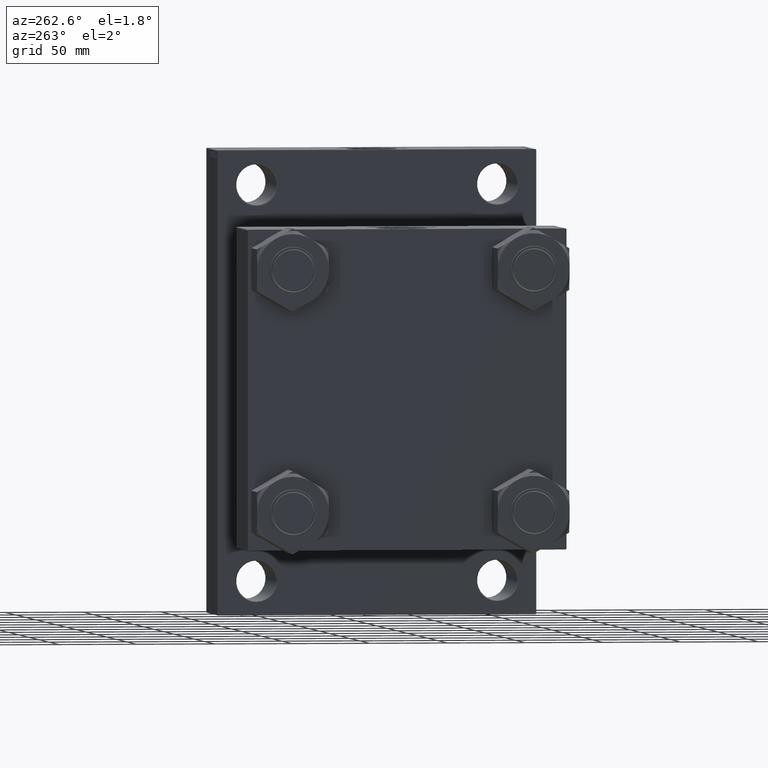
[diagram: clean part render]
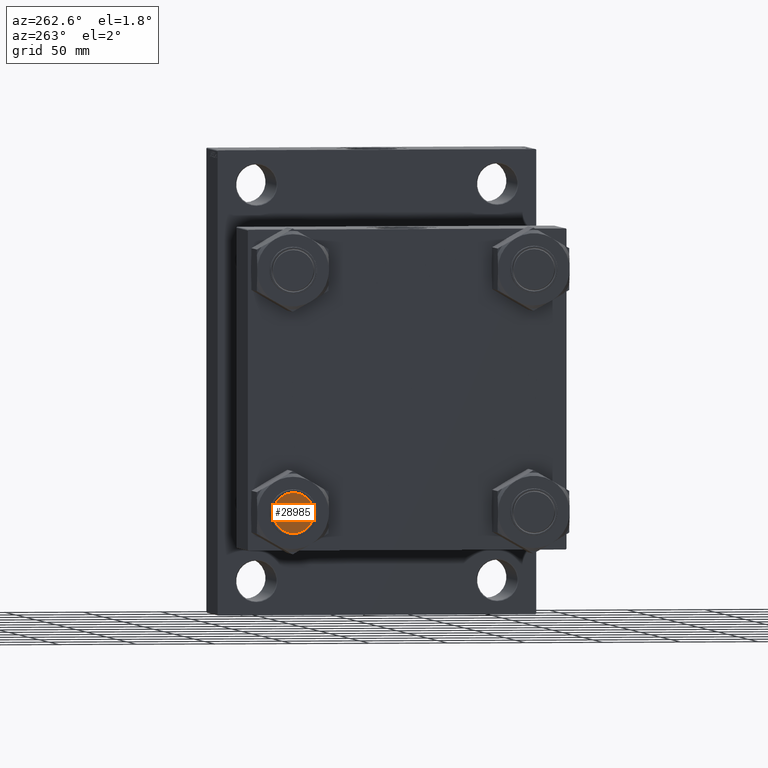
[diagram: same view with one face highlighted and labeled with its STEP entity id]
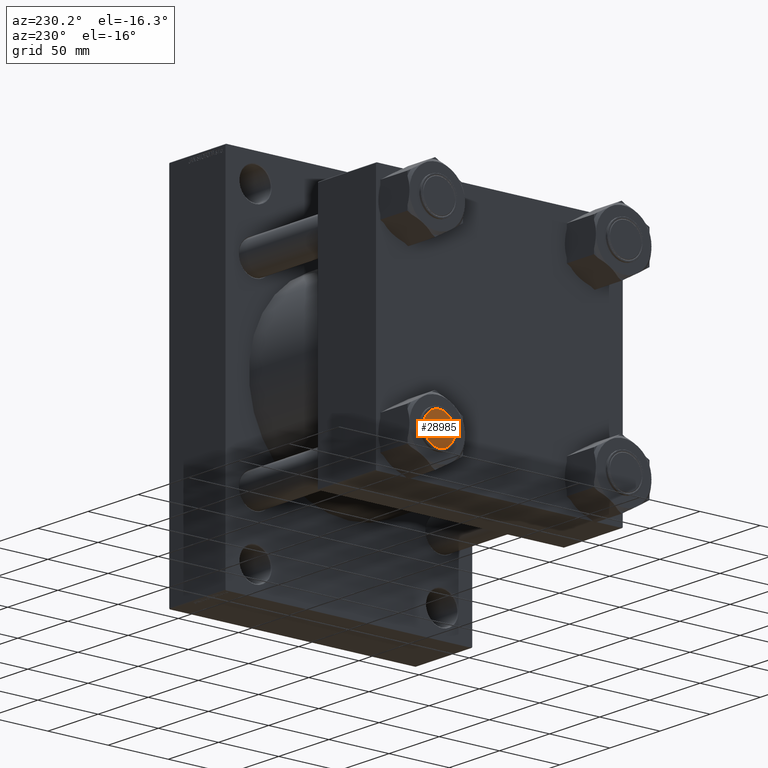
[diagram: same view with one face highlighted and labeled with its STEP entity id]
A machine part, auxiliary view. The second image highlights one B-rep face of the part: STEP entity #28985.
A second angle (auxiliary view) of the same face is appended — the face is thin or edge-on in the first view.
In plain terms, the highlighted planar face has unit normal (1, 0, 0).
Its self-contained STEP definition (entity closure, byte-faithful):
#1959 = DIRECTION ( 'NONE',  ( 0.000000000000000000, 0.000000000000000000, 1.000000000000000000 ) ) ;
#2057 = DIRECTION ( 'NONE',  ( 1.000000000000000000, 0.000000000000000000, 0.000000000000000000 ) ) ;
#2089 = CIRCLE ( 'NONE', #13668, 13.00000000000003730 ) ;
#2530 = CARTESIAN_POINT ( 'NONE',  ( -13.00000000000003730, 1.622657008870245249E-15, 0.000000000000000000 ) ) ;
#7809 = DIRECTION ( 'NONE',  ( 1.000000000000000000, 0.000000000000000000, 0.000000000000000000 ) ) ;
#10174 = PLANE ( 'NONE',  #32849 ) ;
#13668 = AXIS2_PLACEMENT_3D ( 'NONE', #30225, #36746, #7809 ) ;
#17655 = DIRECTION ( 'NONE',  ( 1.000000000000000000, 0.000000000000000000, -0.000000000000000000 ) ) ;
#20824 = AXIS2_PLACEMENT_3D ( 'NONE', #35579, #46896, #2057 ) ;
#24735 = CARTESIAN_POINT ( 'NONE',  ( 13.00000000000003730, 0.000000000000000000, 0.000000000000000000 ) ) ;
#24876 = CARTESIAN_POINT ( 'NONE',  ( 0.000000000000000000, 0.000000000000000000, 0.000000000000000000 ) ) ;
#26410 = VERTEX_POINT ( 'NONE', #24735 ) ;
#26769 = EDGE_LOOP ( 'NONE', ( #43129, #37139 ) ) ;
#28985 = ADVANCED_FACE ( 'NONE', ( #47037 ), #10174, .F. ) ;
#30225 = CARTESIAN_POINT ( 'NONE',  ( 0.000000000000000000, 0.000000000000000000, 0.000000000000000000 ) ) ;
#30330 = EDGE_CURVE ( 'NONE', #26410, #41277, #2089, .T. ) ;
#32849 = AXIS2_PLACEMENT_3D ( 'NONE', #24876, #1959, #17655 ) ;
#35579 = CARTESIAN_POINT ( 'NONE',  ( 0.000000000000000000, 0.000000000000000000, 0.000000000000000000 ) ) ;
#36746 = DIRECTION ( 'NONE',  ( -0.000000000000000000, -0.000000000000000000, -1.000000000000000000 ) ) ;
#37139 = ORIENTED_EDGE ( 'NONE', *, *, #42096, .T. ) ;
#41277 = VERTEX_POINT ( 'NONE', #2530 ) ;
#41590 = CIRCLE ( 'NONE', #20824, 13.00000000000003730 ) ;
#42096 = EDGE_CURVE ( 'NONE', #41277, #26410, #41590, .T. ) ;
#43129 = ORIENTED_EDGE ( 'NONE', *, *, #30330, .T. ) ;
#46896 = DIRECTION ( 'NONE',  ( -0.000000000000000000, -0.000000000000000000, -1.000000000000000000 ) ) ;
#47037 = FACE_OUTER_BOUND ( 'NONE', #26769, .T. ) ;